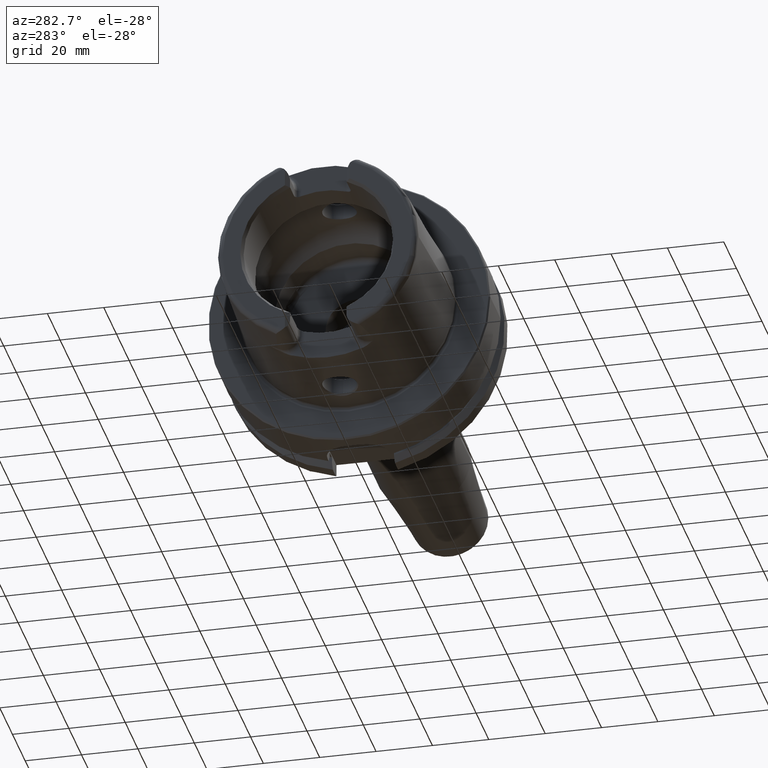
[diagram: clean part render]
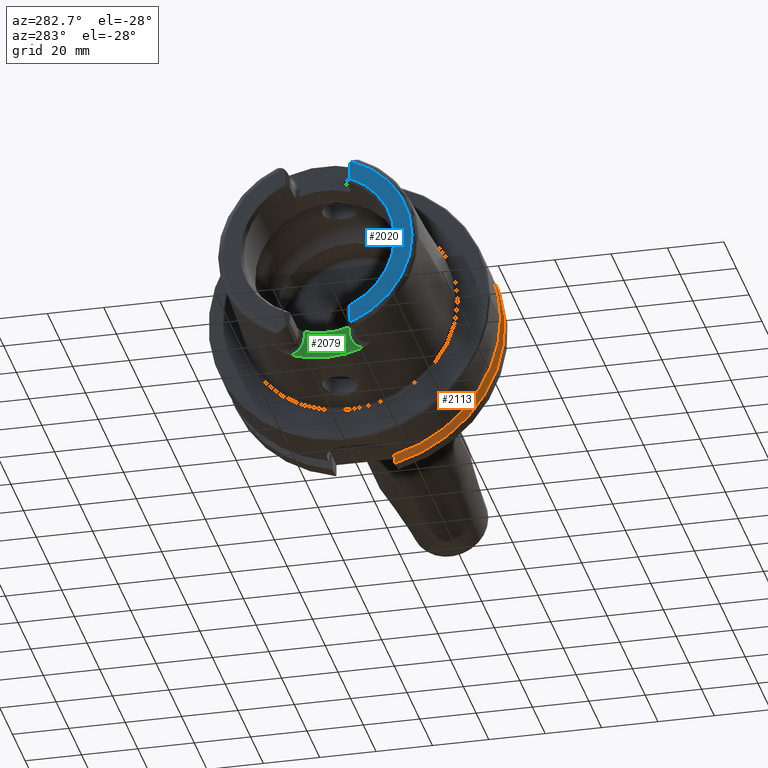
[diagram: same view with three faces highlighted in distinct colors, each labeled with its STEP entity id]
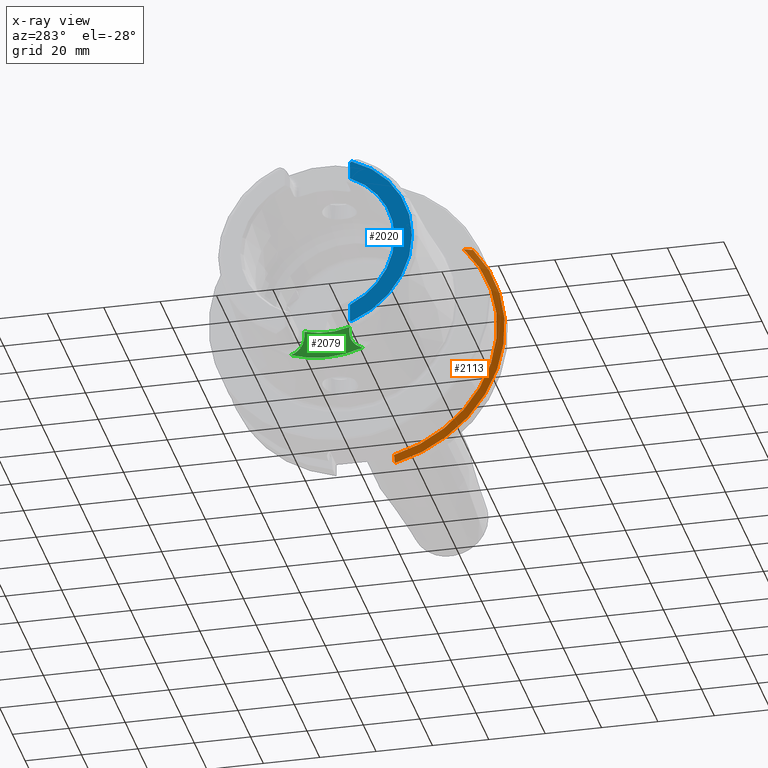
[diagram: x-ray of the same camera — body ghosted, the three highlighted faces saturated]
A machine part, auxiliary view with three faces highlighted in distinct colors.
The next image is the same camera in x-ray (body ghosted, the three faces saturated) — at least one of them is partly hidden behind the body in this view.
Their STEP definitions:

[orange] entity #2113 — the highlighted conical surface has half-angle 60 deg.
#20=(
BOUNDED_CURVE()
B_SPLINE_CURVE(2,(#4032,#4033,#4034),.UNSPECIFIED.,.F.,.F.)
B_SPLINE_CURVE_WITH_KNOTS((3,3),(0.,0.343884390880419),.UNSPECIFIED.)
CURVE()
GEOMETRIC_REPRESENTATION_ITEM()
RATIONAL_B_SPLINE_CURVE((1.,1.00052016257005,1.))
REPRESENTATION_ITEM('')
);
#25=(
BOUNDED_CURVE()
B_SPLINE_CURVE(2,(#4247,#4248,#4249),.UNSPECIFIED.,.F.,.F.)
B_SPLINE_CURVE_WITH_KNOTS((3,3),(0.,0.28292349080556),.UNSPECIFIED.)
CURVE()
GEOMETRIC_REPRESENTATION_ITEM()
RATIONAL_B_SPLINE_CURVE((1.,1.0003193410929,1.))
REPRESENTATION_ITEM('')
);
#329=FACE_OUTER_BOUND('',#464,.T.);
#464=EDGE_LOOP('',(#1961,#1962,#1963,#1964));
#758=CIRCLE('',#2290,50.);
#810=CIRCLE('',#2395,47.5975952641917);
#938=VERTEX_POINT('',#4029);
#939=VERTEX_POINT('',#4031);
#973=VERTEX_POINT('',#4244);
#974=VERTEX_POINT('',#4246);
#1184=EDGE_CURVE('',#939,#938,#20,.T.);
#1234=EDGE_CURVE('',#974,#973,#25,.T.);
#1250=EDGE_CURVE('',#939,#973,#758,.T.);
#1335=EDGE_CURVE('',#938,#974,#810,.T.);
#1961=ORIENTED_EDGE('',*,*,#1184,.T.);
#1962=ORIENTED_EDGE('',*,*,#1335,.T.);
#1963=ORIENTED_EDGE('',*,*,#1234,.T.);
#1964=ORIENTED_EDGE('',*,*,#1250,.F.);
#1994=CONICAL_SURFACE('',#2396,48.7987976320958,1.0471975511966);
#2113=ADVANCED_FACE('',(#329),#1994,.T.);
#2290=AXIS2_PLACEMENT_3D('',#4309,#2786,#2787);
#2395=AXIS2_PLACEMENT_3D('',#4553,#3020,#3021);
#2396=AXIS2_PLACEMENT_3D('',#4554,#3022,#3023);
#2786=DIRECTION('center_axis',(1.,0.,0.));
#2787=DIRECTION('ref_axis',(0.,0.,-1.));
#3020=DIRECTION('center_axis',(1.,0.,0.));
#3021=DIRECTION('ref_axis',(0.,0.,-1.));
#3022=DIRECTION('center_axis',(1.,0.,0.));
#3023=DIRECTION('ref_axis',(0.,-0.951449961441176,-0.307803461438603));
#4029=CARTESIAN_POINT('',(21.875,-35.6830642593065,31.5));
#4031=CARTESIAN_POINT('',(23.2620290209214,-38.8297566307078,31.5));
#4032=CARTESIAN_POINT('Ctrl Pts',(23.2620290209214,-38.8297566307078,31.5));
#4033=CARTESIAN_POINT('Ctrl Pts',(22.5392272442767,-37.2176818849707,31.5));
#4034=CARTESIAN_POINT('Ctrl Pts',(21.875,-35.6830642593065,31.5));
#4244=CARTESIAN_POINT('',(23.2620290209214,-11.,-48.7749935930288));
#4246=CARTESIAN_POINT('',(21.875,-11.,-46.3090819919138));
#4247=CARTESIAN_POINT('Ctrl Pts',(21.875,-11.,-46.3090819919138));
#4248=CARTESIAN_POINT('Ctrl Pts',(22.5505288964237,-11.,-47.5116880808802));
#4249=CARTESIAN_POINT('Ctrl Pts',(23.2620290209214,-11.,-48.7749935930288));
#4309=CARTESIAN_POINT('Origin',(23.2620290209214,0.,0.));
#4553=CARTESIAN_POINT('Origin',(21.875,0.,0.));
#4554=CARTESIAN_POINT('Origin',(22.5685145104607,0.,0.));

[blue] entity #2020 — the highlighted planar face has unit normal (-1, 0, 0).
#107=PLANE('',#2205);
#236=FACE_OUTER_BOUND('',#364,.T.);
#364=EDGE_LOOP('',(#1451,#1452,#1453,#1454,#1455,#1456));
#492=LINE('',#3204,#598);
#494=LINE('',#3223,#600);
#598=VECTOR('',#2548,10.);
#600=VECTOR('',#2570,10.);
#711=CIRCLE('',#2201,27.3660254037844);
#714=CIRCLE('',#2206,4.88);
#715=CIRCLE('',#2207,33.6001839277785);
#716=CIRCLE('',#2208,4.88);
#863=VERTEX_POINT('',#3201);
#864=VERTEX_POINT('',#3203);
#866=VERTEX_POINT('',#3209);
#869=VERTEX_POINT('',#3217);
#870=VERTEX_POINT('',#3219);
#871=VERTEX_POINT('',#3221);
#1085=EDGE_CURVE('',#863,#864,#492,.T.);
#1088=EDGE_CURVE('',#864,#866,#711,.T.);
#1092=EDGE_CURVE('',#863,#869,#714,.T.);
#1093=EDGE_CURVE('',#870,#869,#715,.T.);
#1094=EDGE_CURVE('',#870,#871,#716,.T.);
#1095=EDGE_CURVE('',#866,#871,#494,.T.);
#1451=ORIENTED_EDGE('',*,*,#1085,.F.);
#1452=ORIENTED_EDGE('',*,*,#1092,.T.);
#1453=ORIENTED_EDGE('',*,*,#1093,.F.);
#1454=ORIENTED_EDGE('',*,*,#1094,.T.);
#1455=ORIENTED_EDGE('',*,*,#1095,.F.);
#1456=ORIENTED_EDGE('',*,*,#1088,.F.);
#2020=ADVANCED_FACE('',(#236),#107,.T.);
#2201=AXIS2_PLACEMENT_3D('',#3210,#2554,#2555);
#2205=AXIS2_PLACEMENT_3D('',#3216,#2562,#2563);
#2206=AXIS2_PLACEMENT_3D('',#3218,#2564,#2565);
#2207=AXIS2_PLACEMENT_3D('',#3220,#2566,#2567);
#2208=AXIS2_PLACEMENT_3D('',#3222,#2568,#2569);
#2548=DIRECTION('',(0.,0.,1.));
#2554=DIRECTION('center_axis',(-1.,0.,0.));
#2555=DIRECTION('ref_axis',(0.,-1.,0.));
#2562=DIRECTION('center_axis',(-1.,0.,0.));
#2563=DIRECTION('ref_axis',(0.,0.,1.));
#2564=DIRECTION('center_axis',(-1.,0.,0.));
#2565=DIRECTION('ref_axis',(0.,-1.,0.));
#2566=DIRECTION('center_axis',(1.,0.,0.));
#2567=DIRECTION('ref_axis',(0.,0.,-1.));
#2568=DIRECTION('center_axis',(-1.,0.,0.));
#2569=DIRECTION('ref_axis',(0.,0.477884921181369,-0.878422450821629));
#2570=DIRECTION('',(0.,0.,1.));
#3201=CARTESIAN_POINT('',(-50.,-11.51,-30.8899431813596));
#3203=CARTESIAN_POINT('',(-50.,-11.51,-24.8277918148307));
#3204=CARTESIAN_POINT('',(-50.,-11.51,-13.685));
#3209=CARTESIAN_POINT('',(-50.,-11.51,24.8277918148307));
#3210=CARTESIAN_POINT('Origin',(-50.,0.,0.));
#3216=CARTESIAN_POINT('Origin',(-50.,33.6001839277785,0.));
#3217=CARTESIAN_POINT('',(-50.,-12.0743049948301,-31.355757348091));
#3218=CARTESIAN_POINT('Origin',(-50.,-14.89,-27.37));
#3219=CARTESIAN_POINT('',(-50.,-12.0743049948301,31.355757348091));
#3220=CARTESIAN_POINT('Origin',(-50.,0.,0.));
#3221=CARTESIAN_POINT('',(-50.,-11.51,30.8899431813596));
#3222=CARTESIAN_POINT('Origin',(-50.,-14.89,27.37));
#3223=CARTESIAN_POINT('',(-50.,-11.51,9.));

[green] entity #2079 — the highlighted planar face has unit normal (-1, 0, 0).
#126=PLANE('',#2327);
#295=FACE_OUTER_BOUND('',#426,.T.);
#426=EDGE_LOOP('',(#1801,#1802,#1803,#1804,#1805,#1806));
#557=LINE('',#4424,#663);
#560=LINE('',#4436,#666);
#663=VECTOR('',#2861,10.);
#666=VECTOR('',#2876,10.);
#722=CIRCLE('',#2224,36.25399498998);
#773=CIRCLE('',#2321,6.88);
#776=CIRCLE('',#2328,26.5);
#777=CIRCLE('',#2329,6.88);
#895=VERTEX_POINT('',#3500);
#896=VERTEX_POINT('',#3511);
#997=VERTEX_POINT('',#4408);
#999=VERTEX_POINT('',#4413);
#1001=VERTEX_POINT('',#4433);
#1002=VERTEX_POINT('',#4435);
#1126=EDGE_CURVE('',#895,#896,#722,.T.);
#1280=EDGE_CURVE('',#997,#895,#773,.T.);
#1282=EDGE_CURVE('',#999,#997,#557,.T.);
#1287=EDGE_CURVE('',#1001,#999,#776,.T.);
#1288=EDGE_CURVE('',#1002,#1001,#560,.T.);
#1289=EDGE_CURVE('',#896,#1002,#777,.T.);
#1801=ORIENTED_EDGE('',*,*,#1280,.F.);
#1802=ORIENTED_EDGE('',*,*,#1282,.F.);
#1803=ORIENTED_EDGE('',*,*,#1287,.F.);
#1804=ORIENTED_EDGE('',*,*,#1288,.F.);
#1805=ORIENTED_EDGE('',*,*,#1289,.F.);
#1806=ORIENTED_EDGE('',*,*,#1126,.F.);
#2079=ADVANCED_FACE('',(#295),#126,.T.);
#2224=AXIS2_PLACEMENT_3D('',#3512,#2612,#2613);
#2321=AXIS2_PLACEMENT_3D('',#4410,#2857,#2858);
#2327=AXIS2_PLACEMENT_3D('',#4432,#2872,#2873);
#2328=AXIS2_PLACEMENT_3D('',#4434,#2874,#2875);
#2329=AXIS2_PLACEMENT_3D('',#4437,#2877,#2878);
#2612=DIRECTION('center_axis',(1.,0.,0.));
#2613=DIRECTION('ref_axis',(0.,1.,0.));
#2857=DIRECTION('center_axis',(-1.,0.,0.));
#2858=DIRECTION('ref_axis',(0.,0.510937901715381,-0.8596176246394));
#2861=DIRECTION('',(0.,0.,-1.));
#2872=DIRECTION('center_axis',(-1.,0.,0.));
#2873=DIRECTION('ref_axis',(0.,0.,1.));
#2874=DIRECTION('center_axis',(-1.,0.,0.));
#2875=DIRECTION('ref_axis',(0.,1.,0.));
#2876=DIRECTION('',(0.,0.,1.));
#2877=DIRECTION('center_axis',(-1.,0.,0.));
#2878=DIRECTION('ref_axis',(0.,-0.510937901715381,-0.8596176246394));
#3500=CARTESIAN_POINT('',(-35.,-12.7918651267415,-33.9222690767105));
#3511=CARTESIAN_POINT('',(-35.,12.7918651267415,-33.9222690767105));
#3512=CARTESIAN_POINT('Origin',(-35.,0.,0.));
#4408=CARTESIAN_POINT('',(-35.,-8.01,-27.37));
#4410=CARTESIAN_POINT('Origin',(-35.,-14.89,-27.37));
#4413=CARTESIAN_POINT('',(-35.,-8.01,-25.2604414054862));
#4424=CARTESIAN_POINT('',(-35.,-8.01,-28.685));
#4432=CARTESIAN_POINT('Origin',(-35.,8.88178419700125E-15,-30.));
#4433=CARTESIAN_POINT('',(-35.,8.01,-25.2604414054862));
#4434=CARTESIAN_POINT('Origin',(-35.,0.,0.));
#4435=CARTESIAN_POINT('',(-35.,8.01,-27.37));
#4436=CARTESIAN_POINT('',(-35.,8.01,-25.));
#4437=CARTESIAN_POINT('Origin',(-35.,14.89,-27.37));